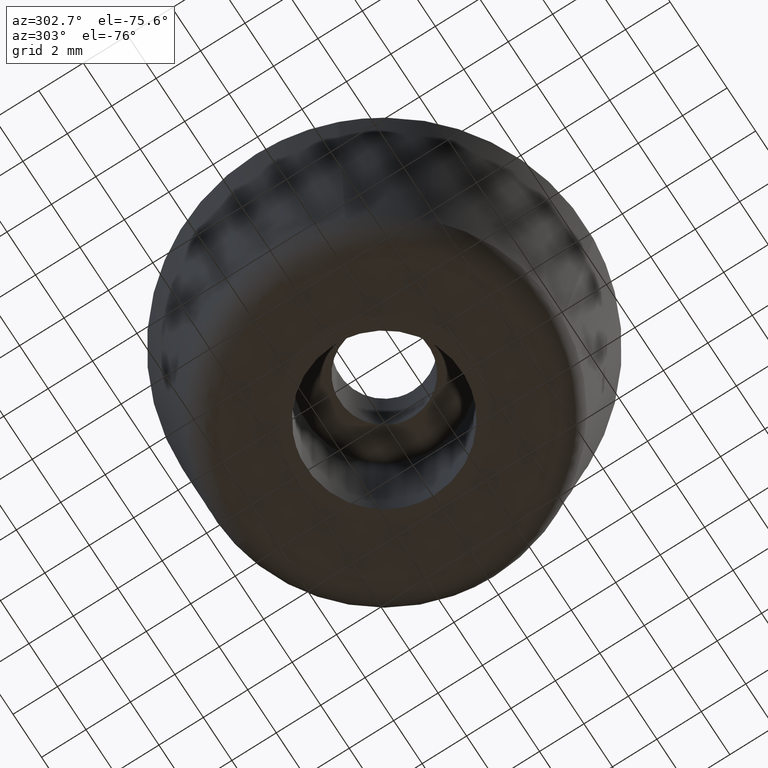
[diagram: clean part render]
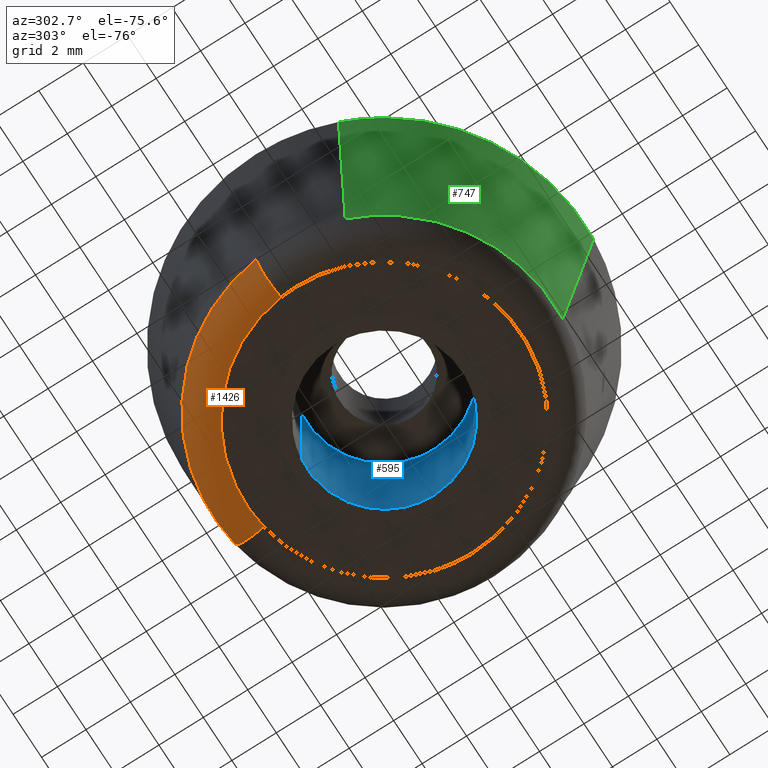
[diagram: same view with three faces highlighted in distinct colors, each labeled with its STEP entity id]
A machine part, auxiliary view with three faces highlighted in distinct colors.
Their STEP definitions:

[orange] entity #1426 — the highlighted face is a freeform B-spline surface patch.
#851=CARTESIAN_POINT('',(1.301221809791649,7.565826945926907,1.297329586158857));
#852=VERTEX_POINT('',#851);
#866=CARTESIAN_POINT('',(-7.627863082045480,0.866382472437226,1.297328732659324));
#867=VERTEX_POINT('',#866);
#868=CARTESIAN_POINT('',(-7.627863082045480,0.866382472437226,1.297328732659324));
#869=CARTESIAN_POINT('',(-6.854314936013569,7.676907965271343,1.297329092479444));
#870=CARTESIAN_POINT('',(6.254833E-009,7.676907947534367,1.297329511675821));
#871=CARTESIAN_POINT('',(0.655352215948372,7.676907945838506,1.297329551755869));
#872=CARTESIAN_POINT('',(1.301221809791649,7.565826945926907,1.297329586158857));
#880=(BOUNDED_CURVE()B_SPLINE_CURVE(2,(#868,#869,#870,#871,#872),.UNSPECIFIED.,.F.,.U.)B_SPLINE_CURVE_WITH_KNOTS((3,2,3),(0.019555639323048,0.250000000000000,0.279150905177840),.UNSPECIFIED.)CURVE()GEOMETRIC_REPRESENTATION_ITEM()RATIONAL_B_SPLINE_CURVE((0.957762578406053,0.730017637775678,1.0,0.965847590204547,0.939659769685429))REPRESENTATION_ITEM(''));
#881=EDGE_CURVE('',#867,#852,#880,.T.);
#1300=CARTESIAN_POINT('',(1.049308495546835,6.101086564539815,2.222416E-016));
#1301=VERTEX_POINT('',#1300);
#1317=CARTESIAN_POINT('',(1.301221809791649,7.565826945926907,1.297329586158857));
#1318=CARTESIAN_POINT('',(1.271237526042943,7.391477356666732,3.522751E-010));
#1319=CARTESIAN_POINT('',(1.049308495546835,6.101086564539815,2.222416E-016));
#1327=(BOUNDED_CURVE()B_SPLINE_CURVE(2,(#1317,#1318,#1319),.UNSPECIFIED.,.F.,.U.)B_SPLINE_CURVE_WITH_KNOTS((3,3),(-1.706259734534231,-0.283065972658377),.UNSPECIFIED.)CURVE()GEOMETRIC_REPRESENTATION_ITEM()RATIONAL_B_SPLINE_CURVE((0.870995868500112,0.657391582905381,0.874224248340931))REPRESENTATION_ITEM(''));
#1328=EDGE_CURVE('',#852,#1301,#1327,.T.);
#1335=CARTESIAN_POINT('',(-6.151112552237747,0.698655820711342,2.482771E-016));
#1336=VERTEX_POINT('',#1335);
#1337=CARTESIAN_POINT('',(-7.627863082045481,0.866382472437226,1.297328732659324));
#1338=CARTESIAN_POINT('',(-7.452083224094938,0.846419872243307,2.503438E-010));
#1339=CARTESIAN_POINT('',(-6.151112552237747,0.698655820711342,2.482771E-016));
#1347=(BOUNDED_CURVE()B_SPLINE_CURVE(2,(#1337,#1338,#1339),.UNSPECIFIED.,.F.,.U.)B_SPLINE_CURVE_WITH_KNOTS((3,3),(-1.706259114266565,-0.283065972573805),.UNSPECIFIED.)CURVE()GEOMETRIC_REPRESENTATION_ITEM()RATIONAL_B_SPLINE_CURVE((0.891038888569516,0.672519464191100,0.894341749844948))REPRESENTATION_ITEM(''));
#1348=EDGE_CURVE('',#867,#1336,#1347,.T.);
#1383=CARTESIAN_POINT('',(-7.637823901770418,0.867519506599581,1.394290878679354));
#1384=CARTESIAN_POINT('',(-6.770304395170837,8.505343408370001,1.394290878679354));
#1385=CARTESIAN_POINT('',(0.867519506599581,7.637823901770418,1.394290878679354));
#1386=CARTESIAN_POINT('',(1.086110534301044,7.612995890161678,1.394290878679354));
#1387=CARTESIAN_POINT('',(1.302923799146906,7.575706806787265,1.394290878679354));
#1388=CARTESIAN_POINT('',(-7.533395789236508,0.855658350094056,-0.093351595037789));
#1389=CARTESIAN_POINT('',(-6.677737439142454,8.389054139330566,-0.093351595037790));
#1390=CARTESIAN_POINT('',(0.855658350094055,7.533395789236508,-0.093351595037789));
#1391=CARTESIAN_POINT('',(1.071260692964173,7.508907238503487,-0.093351595037790));
#1392=CARTESIAN_POINT('',(1.285109579433241,7.472127989951789,-0.093351595037790));
#1393=CARTESIAN_POINT('',(-6.054678208778217,0.687702612661833,0.003143144899035));
#1394=CARTESIAN_POINT('',(-5.366975596116384,6.742380821440049,0.003143144899035));
#1395=CARTESIAN_POINT('',(0.687702612661833,6.054678208778217,0.003143144899035));
#1396=CARTESIAN_POINT('',(0.860984734517471,6.034996474453353,0.003143144899035));
#1397=CARTESIAN_POINT('',(1.032857582977883,6.005436562698902,0.003143144899035));
#1405=(BOUNDED_SURFACE()B_SPLINE_SURFACE(2,2,((#1383,#1388,#1393),(#1384,#1389,#1394),(#1385,#1390,#1395),(#1386,#1391,#1396),(#1387,#1392,#1397)),.UNSPECIFIED.,.F.,.F.,.U.)B_SPLINE_SURFACE_WITH_KNOTS((3,2,3),(3,3),(0.0,12.736128156491990,13.245572796906940),(0.0,2.475121703703561),.UNSPECIFIED.)GEOMETRIC_REPRESENTATION_ITEM()RATIONAL_B_SPLINE_SURFACE(((0.913967850310016,0.649425627027967,0.917600459574662),(0.646272864740704,0.459213264747801,0.648841507385136),(0.913967850310016,0.649425627027967,0.917600459574662),(0.903260061098997,0.641817139792786,0.906850111739422),(0.893408894207920,0.634817330955938,0.896959790910814)))REPRESENTATION_ITEM('')SURFACE());
#1406=CARTESIAN_POINT('',(-6.151112552237747,0.698655820711342,2.482771E-016));
#1407=CARTESIAN_POINT('',(-5.527319280061006,6.190662774238100,0.0));
#1408=CARTESIAN_POINT('',(0.0,6.190662774238100,0.0));
#1409=CARTESIAN_POINT('',(0.528477669297933,6.190662774238100,0.0));
#1410=CARTESIAN_POINT('',(1.049308495546835,6.101086564539815,2.222416E-016));
#1418=(BOUNDED_CURVE()B_SPLINE_CURVE(2,(#1406,#1407,#1408,#1409,#1410),.UNSPECIFIED.,.F.,.U.)B_SPLINE_CURVE_WITH_KNOTS((3,2,3),(0.019555763444666,0.250000000000000,0.279150973646103),.UNSPECIFIED.)CURVE()GEOMETRIC_REPRESENTATION_ITEM()RATIONAL_B_SPLINE_CURVE((0.957762333070878,0.730017783193198,1.0,0.965847509988987,0.939659646668052))REPRESENTATION_ITEM(''));
#1419=EDGE_CURVE('',#1336,#1301,#1418,.T.);
#1420=ORIENTED_EDGE('',*,*,#1419,.F.);
#1421=ORIENTED_EDGE('',*,*,#1348,.F.);
#1422=ORIENTED_EDGE('',*,*,#881,.T.);
#1423=ORIENTED_EDGE('',*,*,#1328,.T.);
#1424=EDGE_LOOP('',(#1420,#1421,#1422,#1423));
#1425=FACE_OUTER_BOUND('',#1424,.T.);
#1426=ADVANCED_FACE('',(#1425),#1405,.T.);

[blue] entity #595 — the highlighted face is a freeform B-spline surface patch.
#493=CARTESIAN_POINT('',(-0.413119821298655,3.475533342272832,7.175000000000001));
#494=CARTESIAN_POINT('',(-0.313651550232922,3.487356654070120,7.175000000000001));
#495=CARTESIAN_POINT('',(-0.213669888371999,3.493471794476533,7.175000000000001));
#496=CARTESIAN_POINT('',(3.279801906104533,3.707141682848533,7.175000000000001));
#497=CARTESIAN_POINT('',(3.493471794476533,0.213669888371999,7.175000000000001));
#498=CARTESIAN_POINT('',(3.707141682848533,-3.279801906104533,7.175000000000001));
#499=CARTESIAN_POINT('',(0.213669888371999,-3.493471794476533,7.175000000000001));
#500=CARTESIAN_POINT('',(-0.413119821298655,3.475533342272832,-0.179375000000000));
#501=CARTESIAN_POINT('',(-0.313651550232922,3.487356654070120,-0.179375000000000));
#502=CARTESIAN_POINT('',(-0.213669888371999,3.493471794476533,-0.179375000000000));
#503=CARTESIAN_POINT('',(3.279801906104533,3.707141682848533,-0.179375000000000));
#504=CARTESIAN_POINT('',(3.493471794476533,0.213669888371999,-0.179375000000000));
#505=CARTESIAN_POINT('',(3.707141682848533,-3.279801906104533,-0.179375000000000));
#506=CARTESIAN_POINT('',(0.213669888371999,-3.493471794476533,-0.179375000000000));
#514=(BOUNDED_SURFACE()B_SPLINE_SURFACE(2,1,((#493,#500),(#494,#501),(#495,#502),(#496,#503),(#497,#504),(#498,#505),(#499,#506)),.UNSPECIFIED.,.F.,.F.,.U.)B_SPLINE_SURFACE_WITH_KNOTS((3,2,2,3),(2,2),(0.0,0.231959594928934,6.030949468152262,11.829939341375590),(0.0,7.354375000000001),.UNSPECIFIED.)GEOMETRIC_REPRESENTATION_ITEM()RATIONAL_B_SPLINE_SURFACE(((0.977505800795127,0.977505800795127),(0.988284271247462,0.988284271247462),(1.0,1.0),(0.707106781186548,0.707106781186548),(1.0,1.0),(0.707106781186548,0.707106781186548),(1.0,1.0)))REPRESENTATION_ITEM('')SURFACE());
#515=CARTESIAN_POINT('',(-0.413114142599969,3.475534017262842,1.832851E-014));
#516=VERTEX_POINT('',#515);
#517=CARTESIAN_POINT('',(3.500000000000000,0.0,0.0));
#518=VERTEX_POINT('',#517);
#519=CARTESIAN_POINT('',(-0.413114142599969,3.475534017262841,1.832851E-014));
#520=CARTESIAN_POINT('',(-0.207281549415800,3.500000000000000,0.0));
#521=CARTESIAN_POINT('',(0.0,3.500000000000000,0.0));
#522=CARTESIAN_POINT('',(3.500000000000000,3.500000000000000,0.0));
#523=CARTESIAN_POINT('',(3.500000000000000,0.0,0.0));
#531=(BOUNDED_CURVE()B_SPLINE_CURVE(2,(#519,#520,#521,#522,#523),.UNSPECIFIED.,.F.,.U.)B_SPLINE_CURVE_WITH_KNOTS((3,2,3),(0.229562749651283,0.250000000000000,0.500000000000000),.UNSPECIFIED.)CURVE()GEOMETRIC_REPRESENTATION_ITEM()RATIONAL_B_SPLINE_CURVE((0.956027295425753,0.976056271846672,1.0,0.707106781186547,1.0))REPRESENTATION_ITEM(''));
#532=EDGE_CURVE('',#516,#518,#531,.T.);
#533=ORIENTED_EDGE('',*,*,#532,.T.);
#534=CARTESIAN_POINT('',(0.213669044647218,-3.493471846080748,-4.579670E-016));
#535=VERTEX_POINT('',#534);
#536=CARTESIAN_POINT('',(3.500000000000000,0.0,0.0));
#537=CARTESIAN_POINT('',(3.499999999999999,-3.292472827502555,0.0));
#538=CARTESIAN_POINT('',(0.213669044647218,-3.493471846080748,-4.579670E-016));
#546=(BOUNDED_CURVE()B_SPLINE_CURVE(2,(#536,#537,#538),.UNSPECIFIED.,.F.,.U.)B_SPLINE_CURVE_WITH_KNOTS((3,3),(0.500000000000000,0.739333045587147),.UNSPECIFIED.)CURVE()GEOMETRIC_REPRESENTATION_ITEM()RATIONAL_B_SPLINE_CURVE((1.0,0.719603895638215,0.976072220297850))REPRESENTATION_ITEM(''));
#547=EDGE_CURVE('',#518,#535,#546,.T.);
#548=ORIENTED_EDGE('',*,*,#547,.T.);
#549=CARTESIAN_POINT('',(0.213669055073446,-3.493471845443057,7.0));
#550=VERTEX_POINT('',#549);
#551=CARTESIAN_POINT('',(0.213669055073446,-3.493471845443057,7.0));
#552=CARTESIAN_POINT('',(0.213669044647218,-3.493471846080748,-4.579670E-016));
#553=QUASI_UNIFORM_CURVE('',1,(#551,#552),.UNSPECIFIED.,.F.,.U.);
#554=EDGE_CURVE('',#550,#535,#553,.T.);
#555=ORIENTED_EDGE('',*,*,#554,.F.);
#556=CARTESIAN_POINT('',(3.500000000000000,0.0,7.0));
#557=VERTEX_POINT('',#556);
#558=CARTESIAN_POINT('',(3.500000000000000,0.0,7.0));
#559=CARTESIAN_POINT('',(3.499999999999999,-3.292472807813108,7.0));
#560=CARTESIAN_POINT('',(0.213669055073446,-3.493471845443057,7.0));
#568=(BOUNDED_CURVE()B_SPLINE_CURVE(2,(#558,#559,#560),.UNSPECIFIED.,.F.,.U.)B_SPLINE_CURVE_WITH_KNOTS((3,3),(0.500000000000000,0.739333044557217),.UNSPECIFIED.)CURVE()GEOMETRIC_REPRESENTATION_ITEM()RATIONAL_B_SPLINE_CURVE((1.0,0.719603896844853,0.976072218090513))REPRESENTATION_ITEM(''));
#569=EDGE_CURVE('',#557,#550,#568,.T.);
#570=ORIENTED_EDGE('',*,*,#569,.F.);
#571=CARTESIAN_POINT('',(-0.413114212632427,3.475534008938653,7.0));
#572=VERTEX_POINT('',#571);
#573=CARTESIAN_POINT('',(-0.413114212632428,3.475534008938654,7.0));
#574=CARTESIAN_POINT('',(-0.207281584802199,3.500000000000000,7.0));
#575=CARTESIAN_POINT('',(0.0,3.500000000000000,7.0));
#576=CARTESIAN_POINT('',(3.500000000000000,3.500000000000000,6.999999999999999));
#577=CARTESIAN_POINT('',(3.500000000000000,0.0,7.0));
#585=(BOUNDED_CURVE()B_SPLINE_CURVE(2,(#573,#574,#575,#576,#577),.UNSPECIFIED.,.F.,.U.)B_SPLINE_CURVE_WITH_KNOTS((3,2,3),(0.229562746245845,0.250000000000000,0.500000000000000),.UNSPECIFIED.)CURVE()GEOMETRIC_REPRESENTATION_ITEM()RATIONAL_B_SPLINE_CURVE((0.956027288750937,0.976056267856952,1.0,0.707106781186547,1.0))REPRESENTATION_ITEM(''));
#586=EDGE_CURVE('',#572,#557,#585,.T.);
#587=ORIENTED_EDGE('',*,*,#586,.F.);
#588=CARTESIAN_POINT('',(-0.413114212632427,3.475534008938653,7.0));
#589=CARTESIAN_POINT('',(-0.413114142599969,3.475534017262842,1.832851E-014));
#590=QUASI_UNIFORM_CURVE('',1,(#588,#589),.UNSPECIFIED.,.F.,.U.);
#591=EDGE_CURVE('',#572,#516,#590,.T.);
#592=ORIENTED_EDGE('',*,*,#591,.T.);
#593=EDGE_LOOP('',(#533,#548,#555,#570,#587,#592));
#594=FACE_OUTER_BOUND('',#593,.T.);
#595=ADVANCED_FACE('',(#594),#514,.F.);

[green] entity #747 — the highlighted face is a freeform B-spline surface patch.
#683=CARTESIAN_POINT('',(-7.107726034002156,-2.812183437789553,1.054761950975807));
#684=CARTESIAN_POINT('',(-5.030095807272090,-8.063343889529682,1.054761950975807));
#685=CARTESIAN_POINT('',(0.599728030720520,-7.620267144357735,1.054761950975807));
#686=CARTESIAN_POINT('',(-8.400306121579487,-3.323594864863761,11.248630951225609));
#687=CARTESIAN_POINT('',(-5.944847114227733,-9.529708476605046,11.248630951225605));
#688=CARTESIAN_POINT('',(0.708791957321362,-9.006055725079161,11.248630951225611));
#696=(BOUNDED_SURFACE()B_SPLINE_SURFACE(2,1,((#683,#686),(#684,#687),(#685,#688)),.UNSPECIFIED.,.F.,.F.,.U.)B_SPLINE_SURFACE_WITH_KNOTS((3,3),(2,2),(0.0,11.892671704418680),(0.0,10.288210248862400),.UNSPECIFIED.)GEOMETRIC_REPRESENTATION_ITEM()RATIONAL_B_SPLINE_SURFACE(((0.906274169979695,0.906274169979695),(0.765685424949238,0.765685424949238),(1.0,1.0)))REPRESENTATION_ITEM('')SURFACE());
#697=CARTESIAN_POINT('',(0.602318470485690,-7.653242797028248,1.297328285197202));
#698=VERTEX_POINT('',#697);
#699=CARTESIAN_POINT('',(-7.138484838059513,-2.824348576882155,1.297327242444042));
#700=VERTEX_POINT('',#699);
#701=CARTESIAN_POINT('',(0.602318470485690,-7.653242797028248,1.297328285197202));
#702=CARTESIAN_POINT('',(0.301624131760186,-7.676907769402582,1.297328257469958));
#703=CARTESIAN_POINT('',(1.761272E-009,-7.676907772060990,1.297328228220982));
#704=CARTESIAN_POINT('',(-5.218565133453025,-7.676907818055581,1.297327722168351));
#705=CARTESIAN_POINT('',(-7.138484838059514,-2.824348576882155,1.297327242444041));
#713=(BOUNDED_CURVE()B_SPLINE_CURVE(2,(#701,#702,#703,#704,#705),.UNSPECIFIED.,.F.,.U.)B_SPLINE_CURVE_WITH_KNOTS((3,2,3),(0.736331407494371,0.750000000000000,0.937532638231760),.UNSPECIFIED.)CURVE()GEOMETRIC_REPRESENTATION_ITEM()RATIONAL_B_SPLINE_CURVE((0.969723579183938,0.983986247777508,1.0,0.780291847822884,0.890203290996165))REPRESENTATION_ITEM(''));
#714=EDGE_CURVE('',#698,#700,#713,.T.);
#715=ORIENTED_EDGE('',*,*,#714,.F.);
#716=CARTESIAN_POINT('',(0.706126681616674,-8.972256154220801,10.999998120822321));
#717=VERTEX_POINT('',#716);
#718=CARTESIAN_POINT('',(0.602318470485690,-7.653242797028248,1.297328285197202));
#719=CARTESIAN_POINT('',(0.706126681616674,-8.972256154220801,10.999998120822321));
#720=QUASI_UNIFORM_CURVE('',1,(#718,#719),.UNSPECIFIED.,.F.,.U.);
#721=EDGE_CURVE('',#698,#717,#720,.T.);
#722=ORIENTED_EDGE('',*,*,#721,.T.);
#723=CARTESIAN_POINT('',(-8.368780687199132,-3.311118355610573,10.999997944756300));
#724=VERTEX_POINT('',#723);
#725=CARTESIAN_POINT('',(0.706126681616674,-8.972256154220801,10.999998120822324));
#726=CARTESIAN_POINT('',(0.353608358541168,-8.999999748587992,10.999998116140649));
#727=CARTESIAN_POINT('',(-4.767174E-009,-8.999999752861502,10.999998111202039));
#728=CARTESIAN_POINT('',(-6.117967848683962,-8.999999826799806,10.999998025756433));
#729=CARTESIAN_POINT('',(-8.368780687199132,-3.311118355610573,10.999997944756295));
#737=(BOUNDED_CURVE()B_SPLINE_CURVE(2,(#725,#726,#727,#728,#729),.UNSPECIFIED.,.F.,.U.)B_SPLINE_CURVE_WITH_KNOTS((3,2,3),(0.736331399216788,0.750000000000000,0.937532605537543),.UNSPECIFIED.)CURVE()GEOMETRIC_REPRESENTATION_ITEM()RATIONAL_B_SPLINE_CURVE((0.969723561909238,0.983986238079716,1.0,0.780291886126542,0.890203252672514))REPRESENTATION_ITEM(''));
#738=EDGE_CURVE('',#717,#724,#737,.T.);
#739=ORIENTED_EDGE('',*,*,#738,.T.);
#740=CARTESIAN_POINT('',(-7.138484838059513,-2.824348576882155,1.297327242444042));
#741=CARTESIAN_POINT('',(-8.368780687199132,-3.311118355610573,10.999997944756300));
#742=QUASI_UNIFORM_CURVE('',1,(#740,#741),.UNSPECIFIED.,.F.,.U.);
#743=EDGE_CURVE('',#700,#724,#742,.T.);
#744=ORIENTED_EDGE('',*,*,#743,.F.);
#745=EDGE_LOOP('',(#715,#722,#739,#744));
#746=FACE_OUTER_BOUND('',#745,.T.);
#747=ADVANCED_FACE('',(#746),#696,.T.);